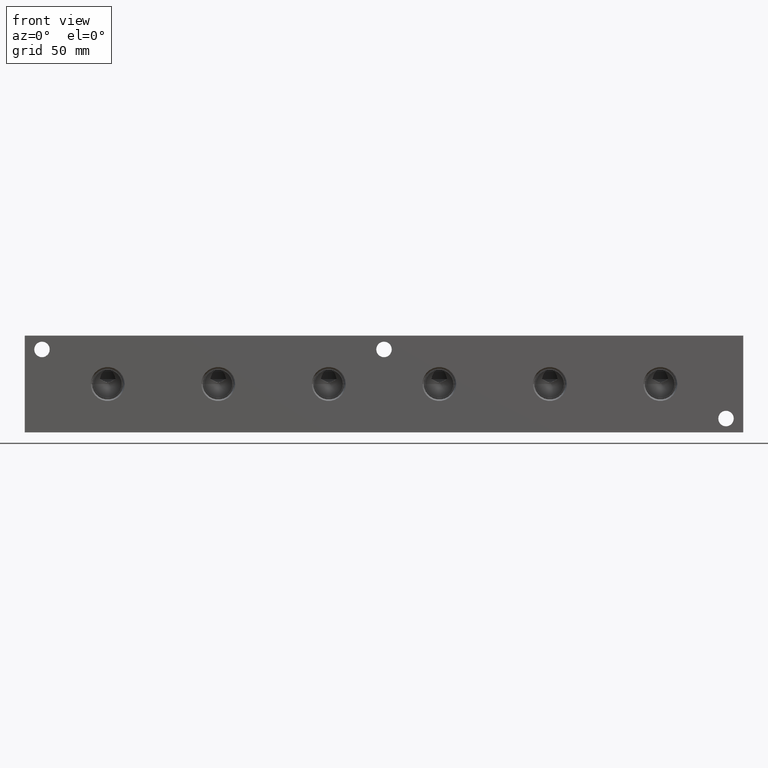
[diagram: clean part render]
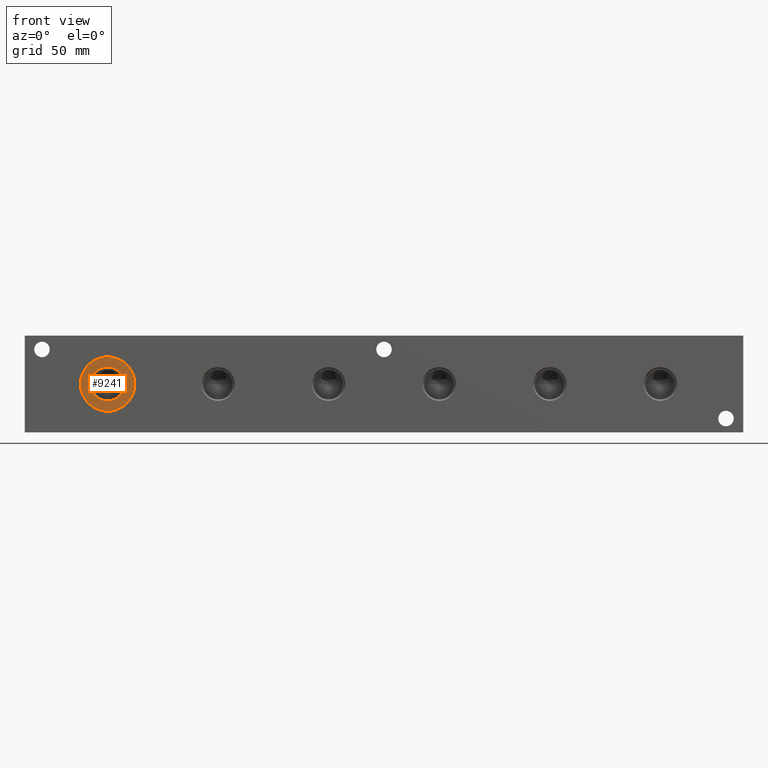
[diagram: same view with one face highlighted and labeled with its STEP entity id]
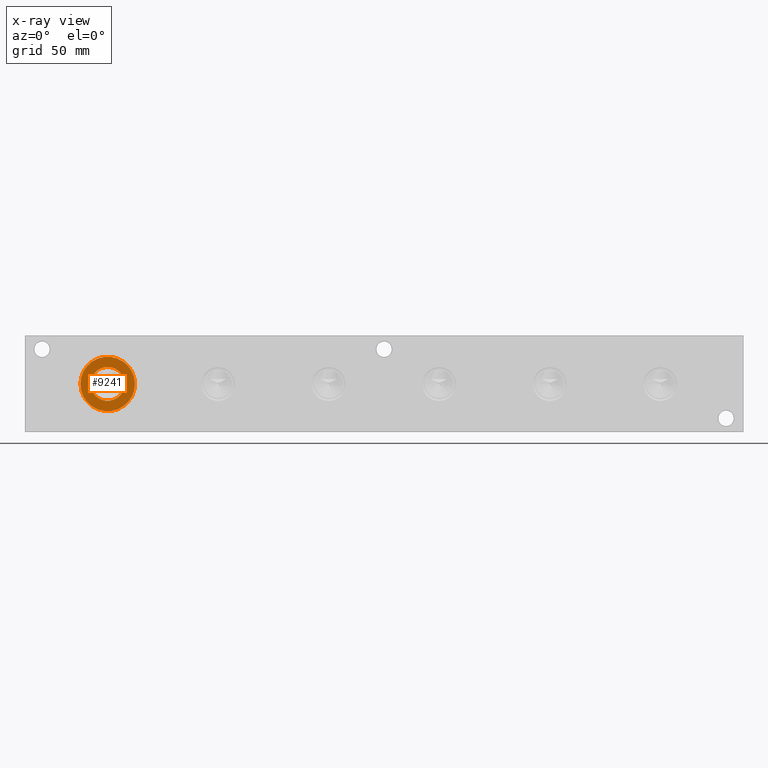
[diagram: x-ray of the same camera — body ghosted, the highlighted face saturated]
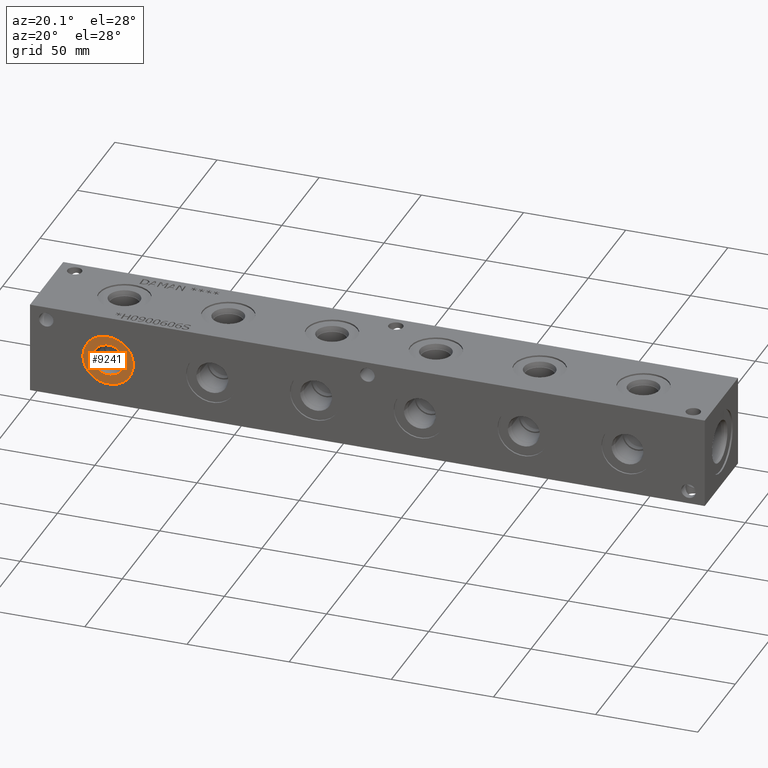
[diagram: same view with one face highlighted and labeled with its STEP entity id]
A machine part, front view. The second image highlights one B-rep face of the part: STEP entity #9241.
The next image is the same camera in x-ray: the body ghosted, the highlighted face saturated — about 0% of this face is hidden behind the body in this view.
A second angle (auxiliary view) of the same face is appended — the face is thin or edge-on in the first view.
In plain terms, the highlighted planar face has unit normal (0, 1, 0).
Its self-contained STEP definition (entity closure, byte-faithful):
#303=CIRCLE('',#9770,12.5095);
#304=CIRCLE('',#9771,12.5095);
#305=CIRCLE('',#9773,7.7978);
#306=CIRCLE('',#9774,7.7978);
#475=FACE_BOUND('',#1855,.T.);
#1324=FACE_OUTER_BOUND('',#1854,.T.);
#1854=EDGE_LOOP('',(#7860,#7861));
#1855=EDGE_LOOP('',(#7862,#7863));
#4222=VERTEX_POINT('',#16185);
#4223=VERTEX_POINT('',#16187);
#4224=VERTEX_POINT('',#16191);
#4225=VERTEX_POINT('',#16192);
#5478=EDGE_CURVE('',#4222,#4223,#303,.T.);
#5479=EDGE_CURVE('',#4223,#4222,#304,.T.);
#5480=EDGE_CURVE('',#4224,#4225,#305,.T.);
#5481=EDGE_CURVE('',#4225,#4224,#306,.T.);
#7860=ORIENTED_EDGE('',*,*,#5479,.F.);
#7861=ORIENTED_EDGE('',*,*,#5478,.F.);
#7862=ORIENTED_EDGE('',*,*,#5480,.T.);
#7863=ORIENTED_EDGE('',*,*,#5481,.T.);
#8508=PLANE('',#9772);
#9241=ADVANCED_FACE('',(#1324,#475),#8508,.F.);
#9770=AXIS2_PLACEMENT_3D('',#16188,#11518,#11519);
#9771=AXIS2_PLACEMENT_3D('',#16189,#11520,#11521);
#9772=AXIS2_PLACEMENT_3D('',#16190,#11522,#11523);
#9773=AXIS2_PLACEMENT_3D('',#16193,#11524,#11525);
#9774=AXIS2_PLACEMENT_3D('',#16194,#11526,#11527);
#11518=DIRECTION('center_axis',(0.,1.,0.));
#11519=DIRECTION('ref_axis',(1.,0.,0.));
#11520=DIRECTION('center_axis',(0.,1.,0.));
#11521=DIRECTION('ref_axis',(1.,0.,0.));
#11522=DIRECTION('center_axis',(0.,1.,0.));
#11523=DIRECTION('ref_axis',(0.,0.,1.));
#11524=DIRECTION('center_axis',(0.,1.,0.));
#11525=DIRECTION('ref_axis',(1.,0.,0.));
#11526=DIRECTION('center_axis',(0.,1.,0.));
#11527=DIRECTION('ref_axis',(1.,0.,0.));
#16185=CARTESIAN_POINT('',(25.5905,0.7874,22.225));
#16187=CARTESIAN_POINT('',(50.6095,0.7874,22.225));
#16188=CARTESIAN_POINT('Origin',(38.1,0.7874,22.225));
#16189=CARTESIAN_POINT('Origin',(38.1,0.7874,22.225));
#16190=CARTESIAN_POINT('Origin',(45.8978,0.7874,22.225));
#16191=CARTESIAN_POINT('',(45.8978,0.7874,22.225));
#16192=CARTESIAN_POINT('',(30.3022,0.787399999999999,22.225));
#16193=CARTESIAN_POINT('Origin',(38.1,0.7874,22.225));
#16194=CARTESIAN_POINT('Origin',(38.1,0.7874,22.225));